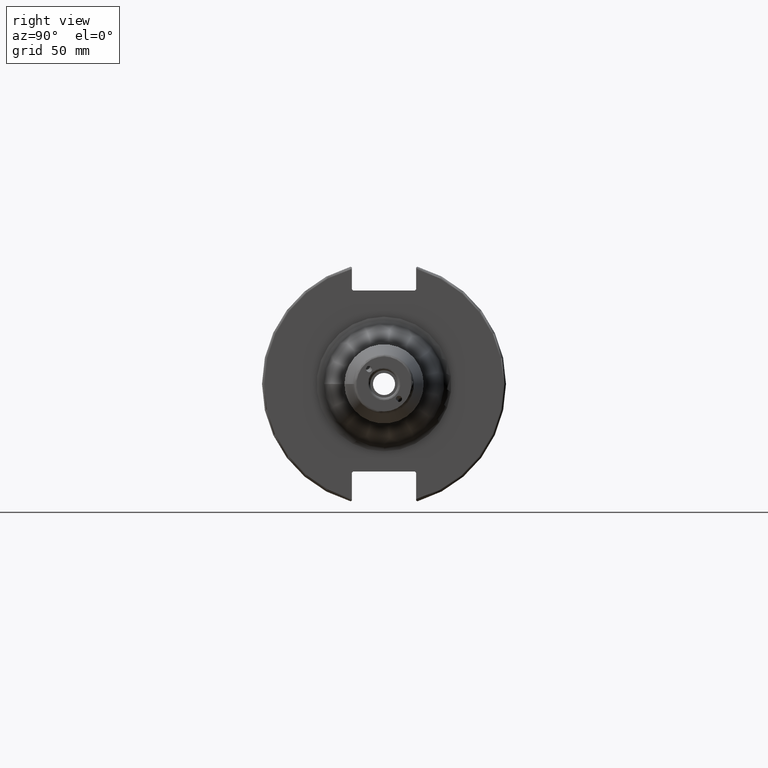
[diagram: clean part render]
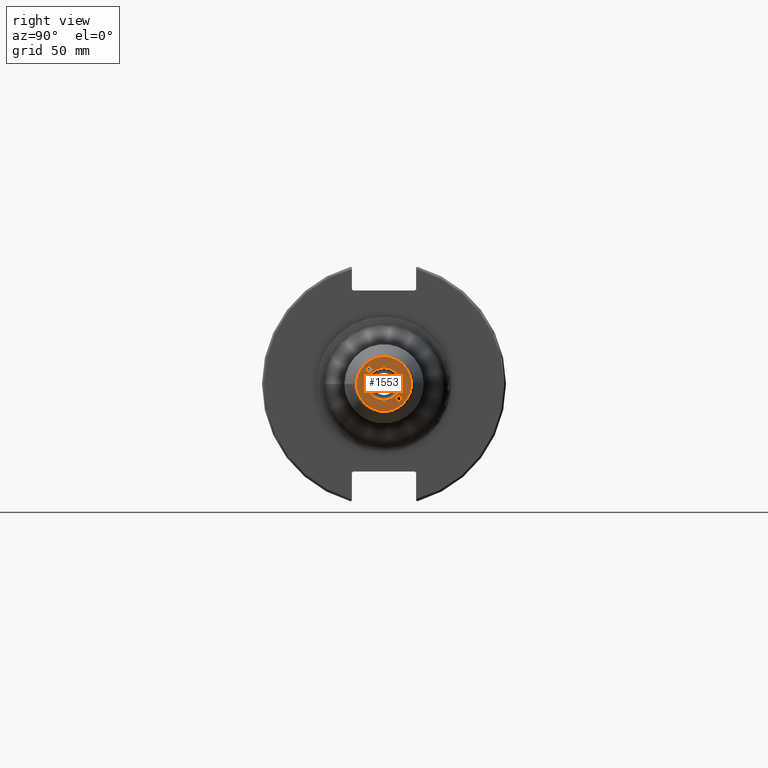
[diagram: same view with one face highlighted and labeled with its STEP entity id]
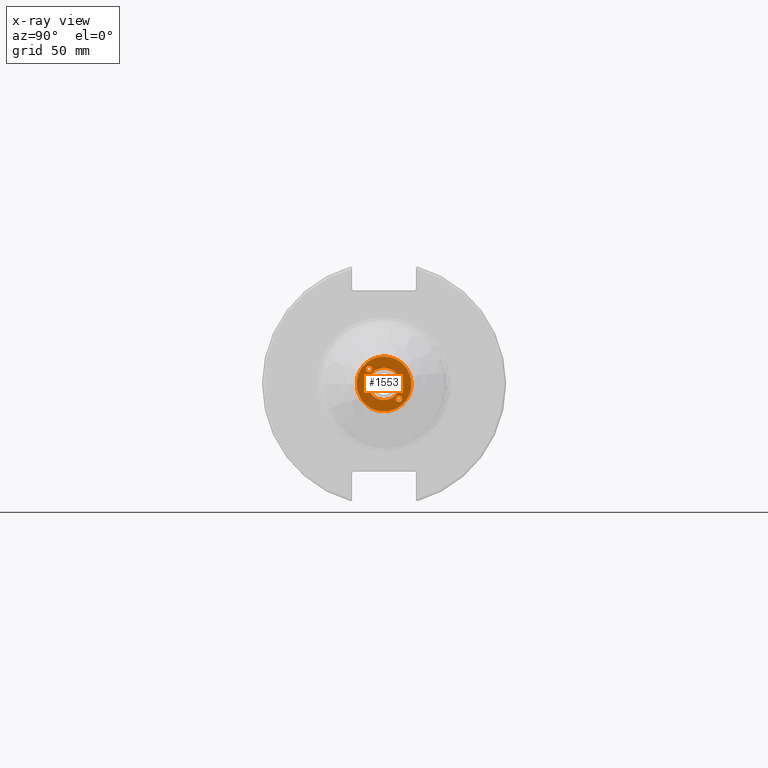
[diagram: x-ray of the same camera — body ghosted, the highlighted face saturated]
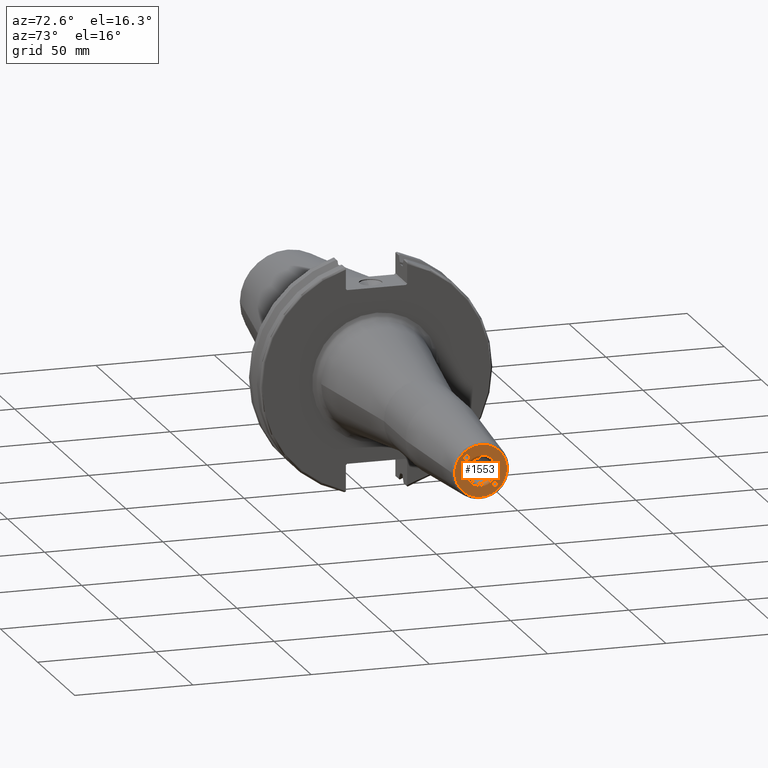
[diagram: same view with one face highlighted and labeled with its STEP entity id]
A machine part, right view. The second image highlights one B-rep face of the part: STEP entity #1553.
The next image is the same camera in x-ray: the body ghosted, the highlighted face saturated — about 0% of this face is hidden behind the body in this view.
A second angle (auxiliary view) of the same face is appended — the face is thin or edge-on in the first view.
In plain terms, the highlighted planar face has unit normal (1, 0, 0).
Its self-contained STEP definition (entity closure, byte-faithful):
#69=FACE_BOUND('',#270,.T.);
#70=FACE_BOUND('',#271,.T.);
#71=FACE_BOUND('',#272,.T.);
#91=PLANE('',#1677);
#137=ELLIPSE('',#1667,1.25076193037353,1.25);
#138=ELLIPSE('',#1671,1.25076193037353,1.25);
#176=FACE_OUTER_BOUND('',#269,.T.);
#269=EDGE_LOOP('',(#1074));
#270=EDGE_LOOP('',(#1075));
#271=EDGE_LOOP('',(#1076));
#272=EDGE_LOOP('',(#1077));
#582=CIRCLE('',#1676,6.55625);
#583=CIRCLE('',#1678,11.0756095083418);
#660=VERTEX_POINT('',#2306);
#663=VERTEX_POINT('',#2315);
#666=VERTEX_POINT('',#2323);
#667=VERTEX_POINT('',#2327);
#819=EDGE_CURVE('',#660,#660,#137,.T.);
#823=EDGE_CURVE('',#663,#663,#138,.T.);
#828=EDGE_CURVE('',#666,#666,#582,.T.);
#829=EDGE_CURVE('',#667,#667,#583,.T.);
#1074=ORIENTED_EDGE('',*,*,#829,.F.);
#1075=ORIENTED_EDGE('',*,*,#819,.T.);
#1076=ORIENTED_EDGE('',*,*,#823,.T.);
#1077=ORIENTED_EDGE('',*,*,#828,.F.);
#1553=ADVANCED_FACE('',(#176,#69,#70,#71),#91,.T.);
#1667=AXIS2_PLACEMENT_3D('',#2307,#1851,#1852);
#1671=AXIS2_PLACEMENT_3D('',#2316,#1861,#1862);
#1676=AXIS2_PLACEMENT_3D('',#2325,#1872,#1873);
#1677=AXIS2_PLACEMENT_3D('',#2326,#1874,#1875);
#1678=AXIS2_PLACEMENT_3D('',#2328,#1876,#1877);
#1851=DIRECTION('center_axis',(-1.,0.,0.));
#1852=DIRECTION('ref_axis',(0.,-0.707106781186413,0.707106781186682));
#1861=DIRECTION('center_axis',(-1.,0.,0.));
#1862=DIRECTION('ref_axis',(0.,0.707106781186413,-0.707106781186682));
#1872=DIRECTION('center_axis',(1.,0.,0.));
#1873=DIRECTION('ref_axis',(0.,-1.,1.83697019872103E-16));
#1874=DIRECTION('center_axis',(1.,0.,0.));
#1875=DIRECTION('ref_axis',(0.,0.,-1.));
#1876=DIRECTION('center_axis',(-1.,0.,0.));
#1877=DIRECTION('ref_axis',(0.,-1.,1.83697019872103E-16));
#2306=CARTESIAN_POINT('',(160.,-4.76002661686279,6.00964570974749));
#2307=CARTESIAN_POINT('Origin',(160.,-6.01040764008565,6.01040764008565));
#2315=CARTESIAN_POINT('',(160.,4.76002661686279,-6.00964570974749));
#2316=CARTESIAN_POINT('Origin',(160.,6.01040764008565,-6.01040764008565));
#2323=CARTESIAN_POINT('',(160.,-8.02909057690983E-16,6.55625));
#2325=CARTESIAN_POINT('Origin',(160.,0.,0.));
#2326=CARTESIAN_POINT('Origin',(160.,5.55625,0.));
#2327=CARTESIAN_POINT('',(160.,-1.35637097329968E-15,11.0756095083418));
#2328=CARTESIAN_POINT('Origin',(160.,0.,0.));